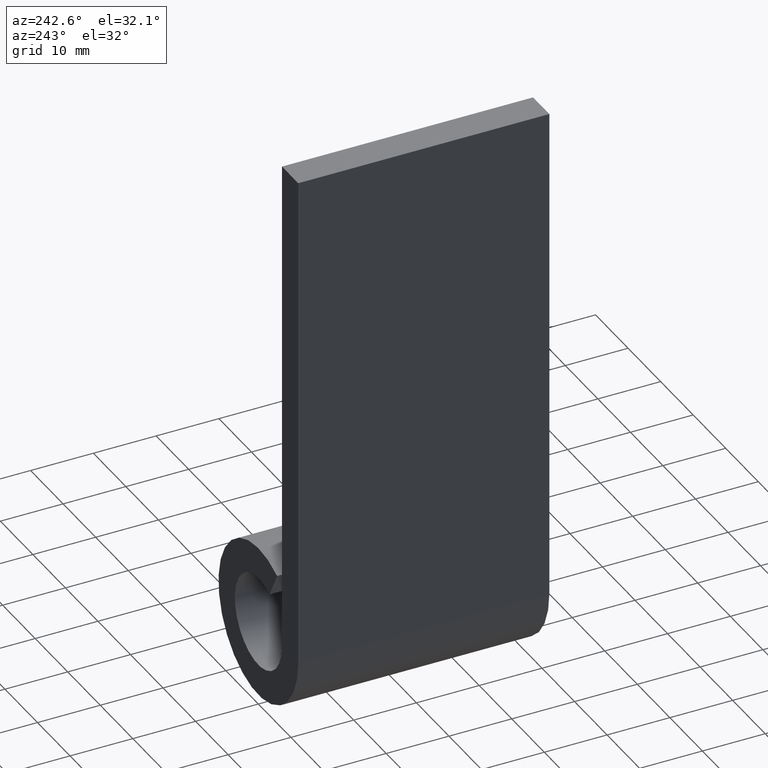
[diagram: clean part render]
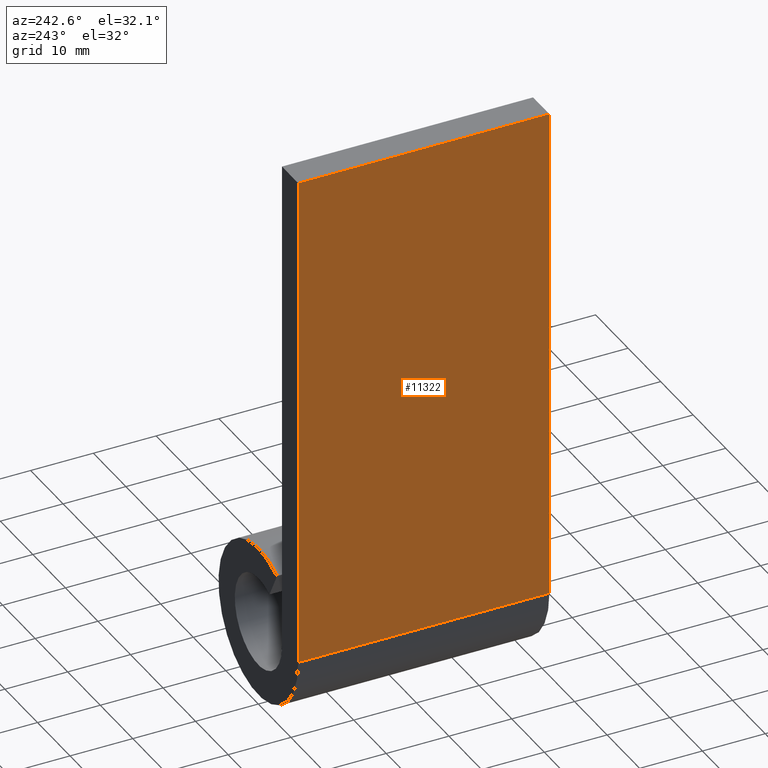
[diagram: same view with one face highlighted and labeled with its STEP entity id]
A machine part, auxiliary view. The second image highlights one B-rep face of the part: STEP entity #11322.
In plain terms, the highlighted planar face has unit normal (1, -0, 0).
Its self-contained STEP definition (entity closure, byte-faithful):
#590 = DIRECTION ( 'NONE',  ( 1.000000000000000000, -0.000000000000000000, 0.000000000000000000 ) ) ;
#1736 = VECTOR ( 'NONE', #3807, 1000.000000000000000 ) ;
#1750 = CARTESIAN_POINT ( 'NONE',  ( -12.25000000000000000, -20.00000000000000000, 80.00000000000000000 ) ) ;
#1877 = CARTESIAN_POINT ( 'NONE',  ( -12.24999999999999822, 20.00000000000000000, 2.250288493433262686E-15 ) ) ;
#2678 = AXIS2_PLACEMENT_3D ( 'NONE', #4826, #590, #10782 ) ;
#3807 = DIRECTION ( 'NONE',  ( -0.000000000000000000, -0.000000000000000000, 1.000000000000000000 ) ) ;
#3809 = LINE ( 'NONE', #1877, #11484 ) ;
#4826 = CARTESIAN_POINT ( 'NONE',  ( -12.25000000000000000, 20.00000000000000000, 80.00000000000000000 ) ) ;
#4836 = ORIENTED_EDGE ( 'NONE', *, *, #5721, .T. ) ;
#5024 = ORIENTED_EDGE ( 'NONE', *, *, #11405, .F. ) ;
#5053 = VERTEX_POINT ( 'NONE', #7676 ) ;
#5551 = LINE ( 'NONE', #1750, #8400 ) ;
#5578 = CARTESIAN_POINT ( 'NONE',  ( -12.24999999999999822, 20.00000000000000000, 2.250288493433262686E-15 ) ) ;
#5721 = EDGE_CURVE ( 'NONE', #10829, #5053, #3809, .T. ) ;
#6022 = EDGE_LOOP ( 'NONE', ( #12966, #5024, #8832, #4836 ) ) ;
#6152 = VERTEX_POINT ( 'NONE', #10425 ) ;
#6164 = FACE_OUTER_BOUND ( 'NONE', #6022, .T. ) ;
#6330 = EDGE_CURVE ( 'NONE', #10829, #6152, #12596, .T. ) ;
#7054 = DIRECTION ( 'NONE',  ( -0.000000000000000000, -1.000000000000000000, -0.000000000000000000 ) ) ;
#7676 = CARTESIAN_POINT ( 'NONE',  ( -12.24999999999999822, -20.00000000000000000, 2.250288493433262686E-15 ) ) ;
#8400 = VECTOR ( 'NONE', #11871, 1000.000000000000000 ) ;
#8832 = ORIENTED_EDGE ( 'NONE', *, *, #6330, .F. ) ;
#9508 = VECTOR ( 'NONE', #9989, 1000.000000000000000 ) ;
#9989 = DIRECTION ( 'NONE',  ( -0.000000000000000000, -1.000000000000000000, -0.000000000000000000 ) ) ;
#10425 = CARTESIAN_POINT ( 'NONE',  ( -12.25000000000000000, 20.00000000000000000, 80.00000000000000000 ) ) ;
#10782 = DIRECTION ( 'NONE',  ( 0.000000000000000000, 0.000000000000000000, -1.000000000000000000 ) ) ;
#10829 = VERTEX_POINT ( 'NONE', #5578 ) ;
#10871 = CARTESIAN_POINT ( 'NONE',  ( -12.25000000000000000, 20.00000000000000000, 80.00000000000000000 ) ) ;
#10921 = EDGE_CURVE ( 'NONE', #5053, #12380, #5551, .T. ) ;
#11322 = ADVANCED_FACE ( 'NONE', ( #6164 ), #12982, .F. ) ;
#11405 = EDGE_CURVE ( 'NONE', #6152, #12380, #12540, .T. ) ;
#11471 = CARTESIAN_POINT ( 'NONE',  ( -12.25000000000000000, -20.00000000000000000, 80.00000000000000000 ) ) ;
#11484 = VECTOR ( 'NONE', #7054, 1000.000000000000000 ) ;
#11871 = DIRECTION ( 'NONE',  ( -0.000000000000000000, -0.000000000000000000, 1.000000000000000000 ) ) ;
#12138 = CARTESIAN_POINT ( 'NONE',  ( -12.25000000000000000, 20.00000000000000000, 80.00000000000000000 ) ) ;
#12380 = VERTEX_POINT ( 'NONE', #11471 ) ;
#12540 = LINE ( 'NONE', #10871, #9508 ) ;
#12596 = LINE ( 'NONE', #12138, #1736 ) ;
#12966 = ORIENTED_EDGE ( 'NONE', *, *, #10921, .T. ) ;
#12982 = PLANE ( 'NONE',  #2678 ) ;